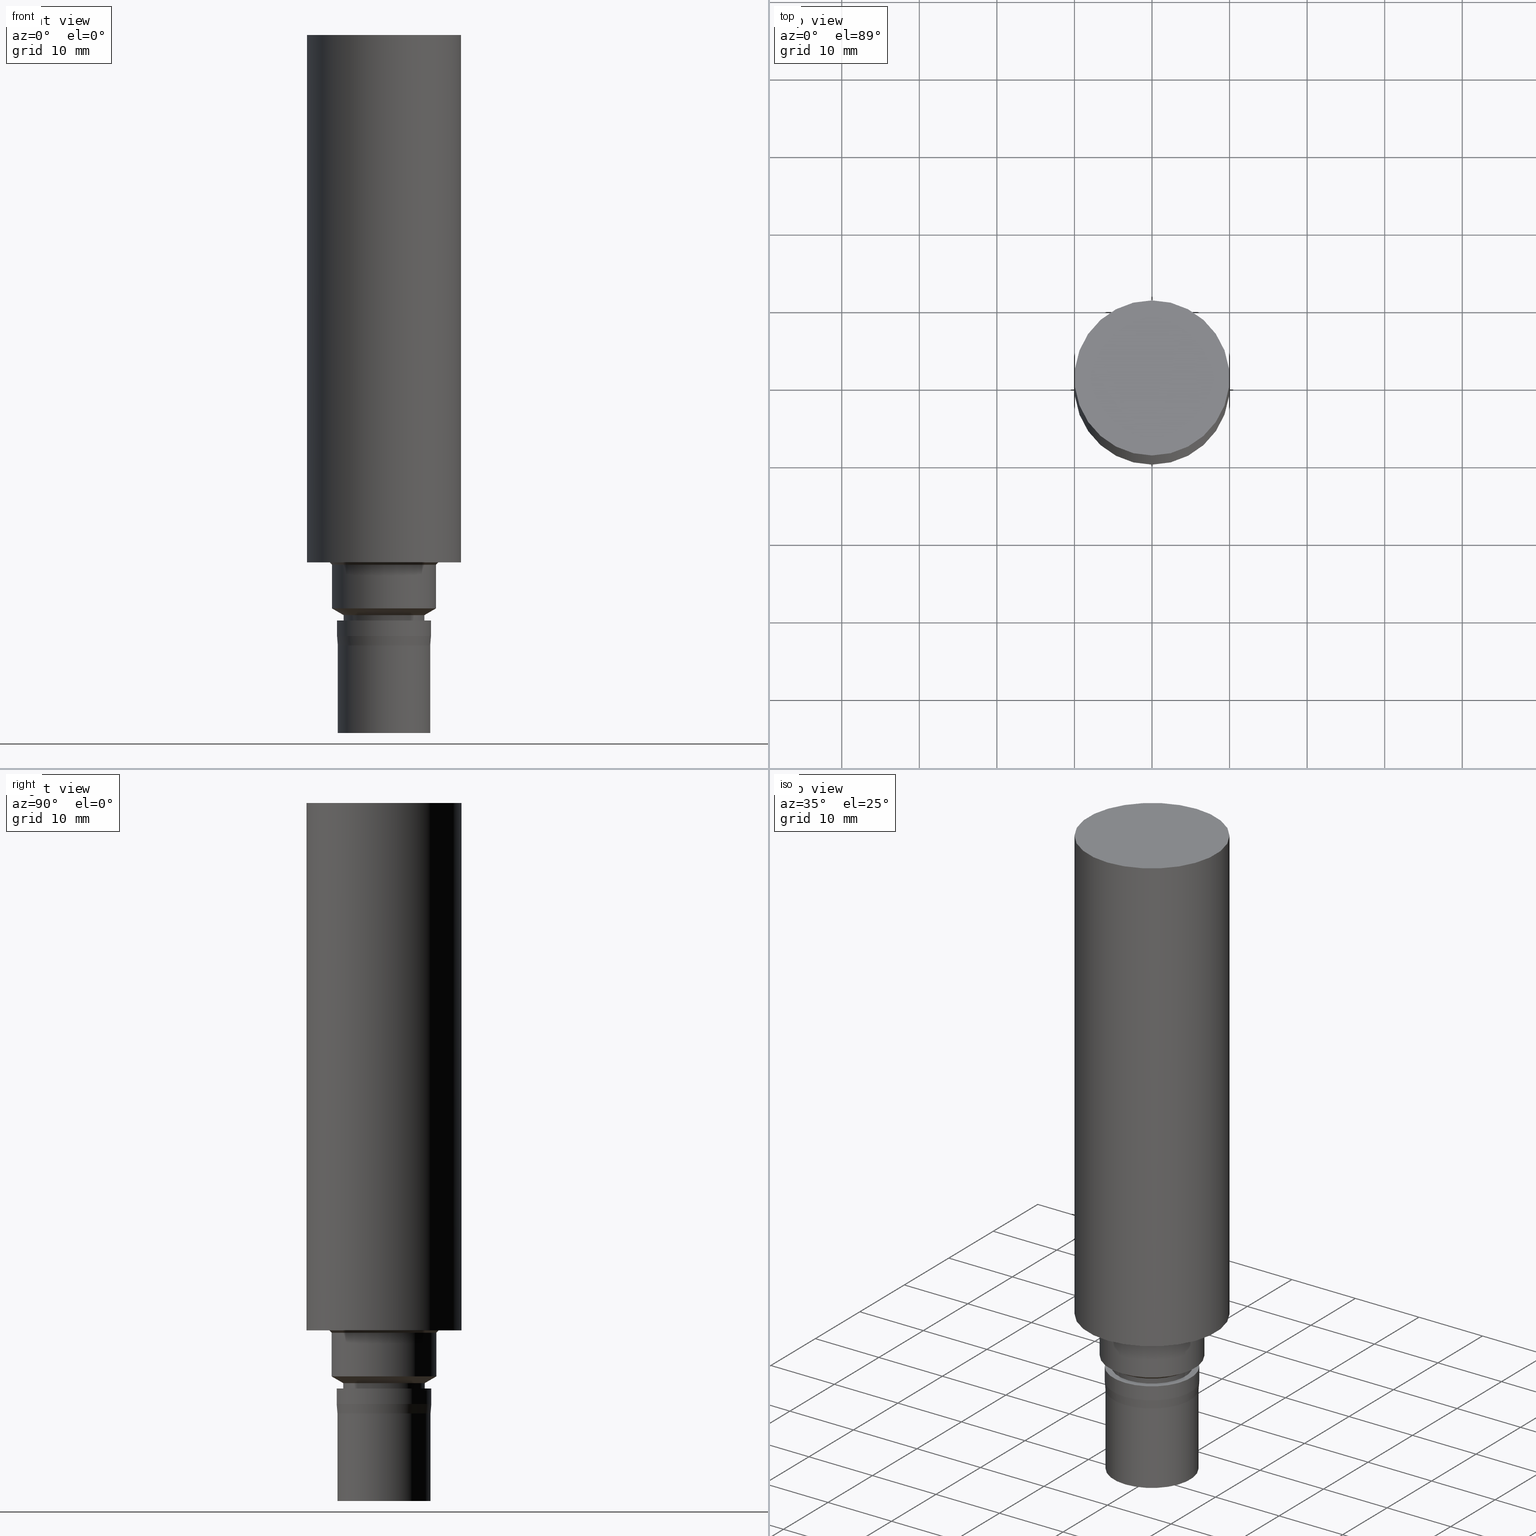
[diagram: canonical four-view strip — front | top / right | iso, engineering-drawing reading convention]
A machine part, canonical four-view strip (front | top / right | iso — engineering-drawing reading convention). The complete STEP part file that produces these views, byte-faithful:
ISO-10303-21;
HEADER;
FILE_DESCRIPTION((''),'1');
FILE_NAME('U:/Translate/00_BIG-HP\X2\FF71FF6FFF8CFF9F\X0\2013/\X2\30C030A630F330ED30FC30C930C730FC30BF\X0\/\X2\FF80FF9EFF73FF9DFF9BFF70FF84FF9EFF83FF9EFF70FF80\X0\201309/03_STP\X2\30C730FC30BF\X0\/ST/31_\X2\FF92FF76FF9EFF7CFF9DFF78FF9BFF80FF6FFF8BFF9FFF9DFF78FF9EFF8EFF99FF80FF9E\X0\/01_\X2\672C4F53\X0\/ST20-MGT3-90.stp','2015-08-12T05:34:02',(''),(''),'Spatial Interop R21 SP3','Kubotek KeyCreator 2011 V10.0.2 (22737)',' ');
FILE_SCHEMA(('automotive_design'));
ENDSEC;
DATA;
#1=MECHANICAL_DESIGN_GEOMETRIC_PRESENTATION_REPRESENTATION(' ',(#10,#11,#12,#13,#14,#15,#16,#17,#18,#19,#20,#21,#22,#23,#24,#25,#26,#27,#28,#29,#30,#31,#32,#33),#6);
#2=PRODUCT_DEFINITION_CONTEXT('',#34,'design');
#3=APPLICATION_PROTOCOL_DEFINITION('INTERNATIONAL STANDARD','automotive_design',1994,#34);
#4=PRODUCT_CATEGORY_RELATIONSHIP('NONE','NONE',#35,#36);
#5=SHAPE_DEFINITION_REPRESENTATION(#37,#38);
#6= (GEOMETRIC_REPRESENTATION_CONTEXT(3)GLOBAL_UNCERTAINTY_ASSIGNED_CONTEXT((#41))GLOBAL_UNIT_ASSIGNED_CONTEXT((#43,#44,#45))REPRESENTATION_CONTEXT('NONE','WORKSPACE'));
#10=STYLED_ITEM('',(#47,#48),#49);
#11=STYLED_ITEM('',(#50),#51);
#12=STYLED_ITEM('',(#52,#53),#54);
#13=STYLED_ITEM('',(#55,#56),#57);
#14=STYLED_ITEM('',(#58,#59),#60);
#15=STYLED_ITEM('',(#61,#62),#63);
#16=STYLED_ITEM('',(#64),#65);
#17=STYLED_ITEM('',(#66),#67);
#18=STYLED_ITEM('',(#68,#69),#70);
#19=STYLED_ITEM('',(#71,#72),#73);
#20=STYLED_ITEM('',(#74,#75),#76);
#21=STYLED_ITEM('',(#77),#78);
#22=STYLED_ITEM('',(#79,#80),#81);
#23=STYLED_ITEM('',(#82),#83);
#24=STYLED_ITEM('',(#84),#85);
#25=STYLED_ITEM('',(#86),#87);
#26=STYLED_ITEM('',(#88),#89);
#27=STYLED_ITEM('',(#90),#91);
#28=STYLED_ITEM('',(#92,#93),#94);
#29=STYLED_ITEM('',(#95,#96),#97);
#30=STYLED_ITEM('',(#98,#99),#100);
#31=STYLED_ITEM('',(#101),#102);
#32=STYLED_ITEM('',(#103),#104);
#33=STYLED_ITEM('',(#105,#106),#107);
#34=APPLICATION_CONTEXT(' ');
#35=PRODUCT_CATEGORY('part','NONE');
#36=PRODUCT_RELATED_PRODUCT_CATEGORY('detail',' ',(#108));
#37=PRODUCT_DEFINITION_SHAPE('NONE','NONE',#109);
#38=ADVANCED_BREP_SHAPE_REPRESENTATION('Unnamed[1]',(#73,#110),#6);
#41=UNCERTAINTY_MEASURE_WITH_UNIT(LENGTH_MEASURE(1.0E-006),#43,'','');
#43= (CONVERSION_BASED_UNIT('MILLIMETRE',#113)LENGTH_UNIT()NAMED_UNIT(#116));
#44= (NAMED_UNIT(#118)PLANE_ANGLE_UNIT()SI_UNIT($,.RADIAN.));
#45= (NAMED_UNIT(#118)SOLID_ANGLE_UNIT()SI_UNIT($,.STERADIAN.));
#47=PRESENTATION_STYLE_ASSIGNMENT((#124));
#48=PRESENTATION_STYLE_ASSIGNMENT((#125));
#49=ADVANCED_FACE('Unnamed[1]',(#126,#127),#128,.T.);
#50=PRESENTATION_STYLE_ASSIGNMENT((#129));
#51=EDGE_CURVE('Unnamed[1]',#130,#130,#131,.T.);
#52=PRESENTATION_STYLE_ASSIGNMENT((#132));
#53=PRESENTATION_STYLE_ASSIGNMENT((#133));
#54=ADVANCED_FACE('Unnamed[1]',(#134,#135),#136,.T.);
#55=PRESENTATION_STYLE_ASSIGNMENT((#137));
#56=PRESENTATION_STYLE_ASSIGNMENT((#138));
#57=ADVANCED_FACE('Unnamed[1]',(#139,#140),#141,.T.);
#58=PRESENTATION_STYLE_ASSIGNMENT((#142));
#59=PRESENTATION_STYLE_ASSIGNMENT((#143));
#60=ADVANCED_FACE('Unnamed[1]',(#144),#145,.T.);
#61=PRESENTATION_STYLE_ASSIGNMENT((#146));
#62=PRESENTATION_STYLE_ASSIGNMENT((#147));
#63=ADVANCED_FACE('Unnamed[1]',(#148,#149),#150,.T.);
#64=PRESENTATION_STYLE_ASSIGNMENT((#151));
#65=EDGE_CURVE('Unnamed[1]',#152,#152,#153,.T.);
#66=PRESENTATION_STYLE_ASSIGNMENT((#154));
#67=EDGE_CURVE('Unnamed[1]',#155,#155,#156,.T.);
#68=PRESENTATION_STYLE_ASSIGNMENT((#157));
#69=PRESENTATION_STYLE_ASSIGNMENT((#158));
#70=ADVANCED_FACE('Unnamed[1]',(#159,#160),#161,.T.);
#71=PRESENTATION_STYLE_ASSIGNMENT((#162));
#72=PRESENTATION_STYLE_ASSIGNMENT((#163));
#73=MANIFOLD_SOLID_BREP('Unnamed[1]',#164);
#74=PRESENTATION_STYLE_ASSIGNMENT((#165));
#75=PRESENTATION_STYLE_ASSIGNMENT((#166));
#76=ADVANCED_FACE('Unnamed[1]',(#167),#168,.T.);
#77=PRESENTATION_STYLE_ASSIGNMENT((#169));
#78=EDGE_CURVE('Unnamed[1]',#170,#170,#171,.T.);
#79=PRESENTATION_STYLE_ASSIGNMENT((#172));
#80=PRESENTATION_STYLE_ASSIGNMENT((#173));
#81=ADVANCED_FACE('Unnamed[1]',(#174,#175),#176,.T.);
#82=PRESENTATION_STYLE_ASSIGNMENT((#177));
#83=EDGE_CURVE('Unnamed[1]',#178,#178,#179,.T.);
#84=PRESENTATION_STYLE_ASSIGNMENT((#180));
#85=EDGE_CURVE('Unnamed[1]',#181,#181,#182,.T.);
#86=PRESENTATION_STYLE_ASSIGNMENT((#183));
#87=EDGE_CURVE('Unnamed[1]',#184,#184,#185,.T.);
#88=PRESENTATION_STYLE_ASSIGNMENT((#186));
#89=EDGE_CURVE('Unnamed[1]',#187,#187,#188,.T.);
#90=PRESENTATION_STYLE_ASSIGNMENT((#189));
#91=EDGE_CURVE('Unnamed[1]',#190,#190,#191,.T.);
#92=PRESENTATION_STYLE_ASSIGNMENT((#192));
#93=PRESENTATION_STYLE_ASSIGNMENT((#193));
#94=ADVANCED_FACE('Unnamed[1]',(#194,#195),#196,.T.);
#95=PRESENTATION_STYLE_ASSIGNMENT((#197));
#96=PRESENTATION_STYLE_ASSIGNMENT((#198));
#97=ADVANCED_FACE('Unnamed[1]',(#199,#200),#201,.T.);
#98=PRESENTATION_STYLE_ASSIGNMENT((#202));
#99=PRESENTATION_STYLE_ASSIGNMENT((#203));
#100=ADVANCED_FACE('Unnamed[1]',(#204,#205),#206,.T.);
#101=PRESENTATION_STYLE_ASSIGNMENT((#207));
#102=EDGE_CURVE('Unnamed[1]',#208,#208,#209,.T.);
#103=PRESENTATION_STYLE_ASSIGNMENT((#210));
#104=EDGE_CURVE('Unnamed[1]',#211,#211,#212,.T.);
#105=PRESENTATION_STYLE_ASSIGNMENT((#213));
#106=PRESENTATION_STYLE_ASSIGNMENT((#214));
#107=ADVANCED_FACE('Unnamed[1]',(#215,#216),#217,.T.);
#108=PRODUCT('Unnamed[1]','Unnamed[1]','PART-Unnamed[1]-DESC',(#218));
#109=PRODUCT_DEFINITION('NONE','NONE',#219,#2);
#110=AXIS2_PLACEMENT_3D('',#220,#221,#222);
#113=LENGTH_MEASURE_WITH_UNIT(LENGTH_MEASURE(1.0),#223);
#116=DIMENSIONAL_EXPONENTS(1.0,0.0,0.0,0.0,0.0,0.0,0.0);
#118=DIMENSIONAL_EXPONENTS(0.0,0.0,0.0,0.0,0.0,0.0,0.0);
#124=SURFACE_STYLE_USAGE(.BOTH.,#224);
#125=CURVE_STYLE('',#225,POSITIVE_LENGTH_MEASURE(1000.0),#226);
#126=FACE_BOUND('',#227,.T.);
#127=FACE_BOUND('',#228,.T.);
#128=CYLINDRICAL_SURFACE('',#229,6.10000000000002);
#129=CURVE_STYLE('',#230,POSITIVE_LENGTH_MEASURE(1000.0),#231);
#130=VERTEX_POINT('',#232);
#131=CIRCLE('',#233,5.24999999999989);
#132=SURFACE_STYLE_USAGE(.BOTH.,#234);
#133=CURVE_STYLE('',#235,POSITIVE_LENGTH_MEASURE(1000.0),#236);
#134=FACE_BOUND('',#237,.T.);
#135=FACE_OUTER_BOUND('',#238,.T.);
#136=PLANE('',#239);
#137=SURFACE_STYLE_USAGE(.BOTH.,#240);
#138=CURVE_STYLE('',#241,POSITIVE_LENGTH_MEASURE(1000.0),#242);
#139=FACE_BOUND('',#243,.T.);
#140=FACE_BOUND('',#244,.T.);
#141=CONICAL_SURFACE('',#245,6.04999999999995,0.0831412318881519);
#142=SURFACE_STYLE_USAGE(.BOTH.,#246);
#143=CURVE_STYLE('',#247,POSITIVE_LENGTH_MEASURE(1000.0),#248);
#144=FACE_OUTER_BOUND('',#249,.T.);
#145=PLANE('',#250);
#146=SURFACE_STYLE_USAGE(.BOTH.,#251);
#147=CURVE_STYLE('',#252,POSITIVE_LENGTH_MEASURE(1000.0),#253);
#148=FACE_BOUND('',#254,.T.);
#149=FACE_BOUND('',#255,.T.);
#150=CYLINDRICAL_SURFACE('',#256,5.99999999999989);
#151=CURVE_STYLE('',#257,POSITIVE_LENGTH_MEASURE(1000.0),#258);
#152=VERTEX_POINT('',#259);
#153=CIRCLE('',#260,6.74999999999997);
#154=CURVE_STYLE('',#261,POSITIVE_LENGTH_MEASURE(1000.0),#262);
#155=VERTEX_POINT('',#263);
#156=CIRCLE('',#264,10.0000000000007);
#157=SURFACE_STYLE_USAGE(.BOTH.,#265);
#158=CURVE_STYLE('',#266,POSITIVE_LENGTH_MEASURE(1000.0),#267);
#159=FACE_BOUND('',#268,.T.);
#160=FACE_BOUND('',#269,.T.);
#161=CYLINDRICAL_SURFACE('',#270,10.0000000000001);
#162=SURFACE_STYLE_USAGE(.BOTH.,#271);
#163=CURVE_STYLE('',#272,POSITIVE_LENGTH_MEASURE(1000.0),#273);
#164=CLOSED_SHELL('',(#54,#97,#100,#107,#81,#94,#49,#57,#63,#76,#60,#70));
#165=SURFACE_STYLE_USAGE(.BOTH.,#274);
#166=CURVE_STYLE('',#275,POSITIVE_LENGTH_MEASURE(1000.0),#276);
#167=FACE_OUTER_BOUND('',#277,.T.);
#168=PLANE('',#278);
#169=CURVE_STYLE('',#279,POSITIVE_LENGTH_MEASURE(1000.0),#280);
#170=VERTEX_POINT('',#281);
#171=CIRCLE('',#282,5.24999999999989);
#172=SURFACE_STYLE_USAGE(.BOTH.,#283);
#173=CURVE_STYLE('',#284,POSITIVE_LENGTH_MEASURE(1000.0),#285);
#174=FACE_BOUND('',#286,.T.);
#175=FACE_BOUND('',#287,.T.);
#176=CYLINDRICAL_SURFACE('',#288,5.24999999999989);
#177=CURVE_STYLE('',#289,POSITIVE_LENGTH_MEASURE(1000.0),#290);
#178=VERTEX_POINT('',#291);
#179=CIRCLE('',#292,7.05000000000022);
#180=CURVE_STYLE('',#293,POSITIVE_LENGTH_MEASURE(1000.0),#294);
#181=VERTEX_POINT('',#295);
#182=CIRCLE('',#296,5.99999999999989);
#183=CURVE_STYLE('',#297,POSITIVE_LENGTH_MEASURE(1000.0),#298);
#184=VERTEX_POINT('',#299);
#185=CIRCLE('',#300,9.99999999999962);
#186=CURVE_STYLE('',#301,POSITIVE_LENGTH_MEASURE(1000.0),#302);
#187=VERTEX_POINT('',#303);
#188=CIRCLE('',#304,6.74999999999997);
#189=CURVE_STYLE('',#305,POSITIVE_LENGTH_MEASURE(1000.0),#306);
#190=VERTEX_POINT('',#307);
#191=CIRCLE('',#308,6.10000000000002);
#192=SURFACE_STYLE_USAGE(.BOTH.,#309);
#193=CURVE_STYLE('',#310,POSITIVE_LENGTH_MEASURE(1000.0),#311);
#194=FACE_OUTER_BOUND('',#312,.T.);
#195=FACE_BOUND('',#313,.T.);
#196=PLANE('',#314);
#197=SURFACE_STYLE_USAGE(.BOTH.,#315);
#198=CURVE_STYLE('',#316,POSITIVE_LENGTH_MEASURE(1000.0),#317);
#199=FACE_BOUND('',#318,.T.);
#200=FACE_BOUND('',#319,.T.);
#201=CONICAL_SURFACE('',#320,6.9000000000001,0.785398163397516);
#202=SURFACE_STYLE_USAGE(.BOTH.,#321);
#203=CURVE_STYLE('',#322,POSITIVE_LENGTH_MEASURE(1000.0),#323);
#204=FACE_BOUND('',#324,.T.);
#205=FACE_BOUND('',#325,.T.);
#206=CYLINDRICAL_SURFACE('',#326,6.74999999999997);
#207=CURVE_STYLE('',#327,POSITIVE_LENGTH_MEASURE(1000.0),#328);
#208=VERTEX_POINT('',#329);
#209=CIRCLE('',#330,6.10000000000002);
#210=CURVE_STYLE('',#331,POSITIVE_LENGTH_MEASURE(1000.0),#332);
#211=VERTEX_POINT('',#333);
#212=CIRCLE('',#334,5.99999999999989);
#213=SURFACE_STYLE_USAGE(.BOTH.,#335);
#214=CURVE_STYLE('',#336,POSITIVE_LENGTH_MEASURE(1000.0),#337);
#215=FACE_BOUND('',#338,.T.);
#216=FACE_BOUND('',#339,.T.);
#217=CONICAL_SURFACE('',#340,5.99999999999993,1.04719755119653);
#218=PRODUCT_CONTEXT('',#34,'mechanical');
#219=PRODUCT_DEFINITION_FORMATION_WITH_SPECIFIED_SOURCE(' ','NONE',#108,.NOT_KNOWN.);
#220=CARTESIAN_POINT('',(0.0,0.0,0.0));
#221=DIRECTION('',(0.0,0.0,1.0));
#222=DIRECTION('',(1.0,0.0,0.0));
#223= (NAMED_UNIT(#116)LENGTH_UNIT()SI_UNIT(.MILLI.,.METRE.));
#224=SURFACE_SIDE_STYLE('',(#342));
#225=DRAUGHTING_PRE_DEFINED_CURVE_FONT('continuous');
#226=COLOUR_RGB('',0.0,1.0,0.0);
#227=EDGE_LOOP('',(#343));
#228=EDGE_LOOP('',(#344));
#229=AXIS2_PLACEMENT_3D('',#345,#346,#347);
#230=DRAUGHTING_PRE_DEFINED_CURVE_FONT('continuous');
#231=COLOUR_RGB('',0.0,1.0,0.0);
#232=CARTESIAN_POINT('',(-8.87868929381823E-016,5.24999999999988,14.4999999999999));
#233=AXIS2_PLACEMENT_3D('',#348,#349,#350);
#234=SURFACE_SIDE_STYLE('',(#351));
#235=DRAUGHTING_PRE_DEFINED_CURVE_FONT('continuous');
#236=COLOUR_RGB('',0.0,1.0,0.0);
#237=EDGE_LOOP('',(#352));
#238=EDGE_LOOP('',(#353));
#239=AXIS2_PLACEMENT_3D('',#354,#355,#356);
#240=SURFACE_SIDE_STYLE('',(#357));
#241=DRAUGHTING_PRE_DEFINED_CURVE_FONT('continuous');
#242=COLOUR_RGB('',0.0,1.0,0.0);
#243=EDGE_LOOP('',(#358));
#244=EDGE_LOOP('',(#359));
#245=AXIS2_PLACEMENT_3D('',#360,#361,#362);
#246=SURFACE_SIDE_STYLE('',(#363));
#247=DRAUGHTING_PRE_DEFINED_CURVE_FONT('continuous');
#248=COLOUR_RGB('',0.0,1.0,0.0);
#249=EDGE_LOOP('',(#364));
#250=AXIS2_PLACEMENT_3D('',#365,#366,#367);
#251=SURFACE_SIDE_STYLE('',(#368));
#252=DRAUGHTING_PRE_DEFINED_CURVE_FONT('continuous');
#253=COLOUR_RGB('',0.0,1.0,0.0);
#254=EDGE_LOOP('',(#369));
#255=EDGE_LOOP('',(#370));
#256=AXIS2_PLACEMENT_3D('',#371,#372,#373);
#257=DRAUGHTING_PRE_DEFINED_CURVE_FONT('continuous');
#258=COLOUR_RGB('',0.0,1.0,0.0);
#259=CARTESIAN_POINT('',(-9.83760329288216E-016,6.74999999999997,16.0660254037842));
#260=AXIS2_PLACEMENT_3D('',#374,#375,#376);
#261=DRAUGHTING_PRE_DEFINED_CURVE_FONT('continuous');
#262=COLOUR_RGB('',0.0,1.0,0.0);
#263=CARTESIAN_POINT('',(-5.51091059616327E-015,10.0000000000007,90.0000000000029));
#264=AXIS2_PLACEMENT_3D('',#377,#378,#379);
#265=SURFACE_SIDE_STYLE('',(#380));
#266=DRAUGHTING_PRE_DEFINED_CURVE_FONT('continuous');
#267=COLOUR_RGB('',0.0,1.0,0.0);
#268=EDGE_LOOP('',(#381));
#269=EDGE_LOOP('',(#382));
#270=AXIS2_PLACEMENT_3D('',#383,#384,#385);
#271=SURFACE_SIDE_STYLE('',(#386));
#272=DRAUGHTING_PRE_DEFINED_CURVE_FONT('continuous');
#273=COLOUR_RGB('',0.0,1.0,0.0);
#274=SURFACE_SIDE_STYLE('',(#387));
#275=DRAUGHTING_PRE_DEFINED_CURVE_FONT('continuous');
#276=COLOUR_RGB('',0.0,1.0,0.0);
#277=EDGE_LOOP('',(#388));
#278=AXIS2_PLACEMENT_3D('',#389,#390,#391);
#279=DRAUGHTING_PRE_DEFINED_CURVE_FONT('continuous');
#280=COLOUR_RGB('',0.0,1.0,0.0);
#281=CARTESIAN_POINT('',(-9.30731567351959E-016,5.24999999999988,15.1999999999995));
#282=AXIS2_PLACEMENT_3D('',#392,#393,#394);
#283=SURFACE_SIDE_STYLE('',(#395));
#284=DRAUGHTING_PRE_DEFINED_CURVE_FONT('continuous');
#285=COLOUR_RGB('',0.0,1.0,0.0);
#286=EDGE_LOOP('',(#396));
#287=EDGE_LOOP('',(#397));
#288=AXIS2_PLACEMENT_3D('',#398,#399,#400);
#289=DRAUGHTING_PRE_DEFINED_CURVE_FONT('continuous');
#290=COLOUR_RGB('',0.0,1.0,0.0);
#291=CARTESIAN_POINT('',(-1.34711147906198E-015,7.05000000000022,21.9999999999983));
#292=AXIS2_PLACEMENT_3D('',#401,#402,#403);
#293=DRAUGHTING_PRE_DEFINED_CURVE_FONT('continuous');
#294=COLOUR_RGB('',0.0,1.0,0.0);
#295=CARTESIAN_POINT('',(0.0,5.99999999999989,0.0));
#296=AXIS2_PLACEMENT_3D('',#404,#405,#406);
#297=DRAUGHTING_PRE_DEFINED_CURVE_FONT('continuous');
#298=COLOUR_RGB('',0.0,1.0,0.0);
#299=CARTESIAN_POINT('',(-1.34711147906211E-015,9.99999999999962,22.0000000000003));
#300=AXIS2_PLACEMENT_3D('',#407,#408,#409);
#301=DRAUGHTING_PRE_DEFINED_CURVE_FONT('continuous');
#302=COLOUR_RGB('',0.0,1.0,0.0);
#303=CARTESIAN_POINT('',(-1.32874177707476E-015,6.74999999999997,21.6999999999981));
#304=AXIS2_PLACEMENT_3D('',#410,#411,#412);
#305=DRAUGHTING_PRE_DEFINED_CURVE_FONT('continuous');
#306=COLOUR_RGB('',0.0,1.0,0.0);
#307=CARTESIAN_POINT('',(-8.87868929381823E-016,6.10000000000002,14.4999999999999));
#308=AXIS2_PLACEMENT_3D('',#413,#414,#415);
#309=SURFACE_SIDE_STYLE('',(#416));
#310=DRAUGHTING_PRE_DEFINED_CURVE_FONT('continuous');
#311=COLOUR_RGB('',0.0,1.0,0.0);
#312=EDGE_LOOP('',(#417));
#313=EDGE_LOOP('',(#418));
#314=AXIS2_PLACEMENT_3D('',#419,#420,#421);
#315=SURFACE_SIDE_STYLE('',(#422));
#316=DRAUGHTING_PRE_DEFINED_CURVE_FONT('continuous');
#317=COLOUR_RGB('',0.0,1.0,0.0);
#318=EDGE_LOOP('',(#423));
#319=EDGE_LOOP('',(#424));
#320=AXIS2_PLACEMENT_3D('',#425,#426,#427);
#321=SURFACE_SIDE_STYLE('',(#428));
#322=DRAUGHTING_PRE_DEFINED_CURVE_FONT('continuous');
#323=COLOUR_RGB('',0.0,1.0,0.0);
#324=EDGE_LOOP('',(#429));
#325=EDGE_LOOP('',(#430));
#326=AXIS2_PLACEMENT_3D('',#431,#432,#433);
#327=DRAUGHTING_PRE_DEFINED_CURVE_FONT('continuous');
#328=COLOUR_RGB('',0.0,1.0,0.0);
#329=CARTESIAN_POINT('',(-7.6540424946707E-016,6.10000000000002,12.4999999999996));
#330=AXIS2_PLACEMENT_3D('',#434,#435,#436);
#331=DRAUGHTING_PRE_DEFINED_CURVE_FONT('continuous');
#332=COLOUR_RGB('',0.0,1.0,0.0);
#333=CARTESIAN_POINT('',(-6.91925441517873E-016,5.99999999999989,11.2999999999938));
#334=AXIS2_PLACEMENT_3D('',#437,#438,#439);
#335=SURFACE_SIDE_STYLE('',(#440));
#336=DRAUGHTING_PRE_DEFINED_CURVE_FONT('continuous');
#337=COLOUR_RGB('',0.0,1.0,0.0);
#338=EDGE_LOOP('',(#441));
#339=EDGE_LOOP('',(#442));
#340=AXIS2_PLACEMENT_3D('',#443,#444,#445);
#342=SURFACE_STYLE_FILL_AREA(#446);
#343=ORIENTED_EDGE('',*,*,#102,.F.);
#344=ORIENTED_EDGE('',*,*,#91,.T.);
#345=CARTESIAN_POINT('',(-8.26636589424446E-016,-1.65327317884889E-015,13.4999999999997));
#346=DIRECTION('',(6.12323399573677E-017,1.22464679914735E-016,-1.0));
#347=DIRECTION('',(-1.23259516440783E-032,1.0,1.22464679914735E-016));
#348=CARTESIAN_POINT('',(-8.87868929381823E-016,-1.77573785876365E-015,14.4999999999999));
#349=DIRECTION('',(6.12323399573677E-017,1.22464679914735E-016,-1.0));
#350=DIRECTION('',(-1.23259516440783E-032,1.0,1.22464679914735E-016));
#351=SURFACE_STYLE_FILL_AREA(#447);
#352=ORIENTED_EDGE('',*,*,#83,.F.);
#353=ORIENTED_EDGE('',*,*,#87,.T.);
#354=CARTESIAN_POINT('',(-1.34711147906205E-015,8.52499999999992,21.9999999999993));
#355=DIRECTION('',(6.12323399573677E-017,6.88987625450864E-013,-1.0));
#356=DIRECTION('',(-4.21931516607575E-029,1.0,6.88987625450864E-013));
#357=SURFACE_STYLE_FILL_AREA(#448);
#358=ORIENTED_EDGE('',*,*,#104,.F.);
#359=ORIENTED_EDGE('',*,*,#102,.T.);
#360=CARTESIAN_POINT('',(-7.28664845492472E-016,-1.45732969098494E-015,11.8999999999967));
#361=DIRECTION('',(-6.12323399573677E-017,-1.22464679914735E-016,1.0));
#362=DIRECTION('',(-1.23259516440783E-032,1.0,1.22464679914735E-016));
#363=SURFACE_STYLE_FILL_AREA(#449);
#364=ORIENTED_EDGE('',*,*,#67,.F.);
#365=CARTESIAN_POINT('',(-5.51091059616327E-015,5.00000000000032,90.0000000000029));
#366=DIRECTION('',(-6.12323399573677E-017,-1.22464679914735E-016,1.0));
#367=DIRECTION('',(1.23259516440783E-032,-1.0,-1.22464679914735E-016));
#368=SURFACE_STYLE_FILL_AREA(#450);
#369=ORIENTED_EDGE('',*,*,#85,.F.);
#370=ORIENTED_EDGE('',*,*,#104,.T.);
#371=CARTESIAN_POINT('',(-3.45962720758937E-016,-6.91925441517874E-016,5.64999999999689));
#372=DIRECTION('',(6.12323399573677E-017,1.22464679914735E-016,-1.0));
#373=DIRECTION('',(-1.23259516440783E-032,1.0,1.22464679914735E-016));
#374=CARTESIAN_POINT('',(-9.83760329288216E-016,-1.96752065857643E-015,16.0660254037842));
#375=DIRECTION('',(6.12323399573677E-017,1.22464679914735E-016,-1.0));
#376=DIRECTION('',(-1.23259516440783E-032,1.0,1.22464679914735E-016));
#377=CARTESIAN_POINT('',(-5.51091059616327E-015,-1.10218211923265E-014,90.0000000000029));
#378=DIRECTION('',(6.12323399573677E-017,1.22464679914735E-016,-1.0));
#379=DIRECTION('',(-1.23259516440783E-032,1.0,1.22464679914735E-016));
#380=SURFACE_STYLE_FILL_AREA(#451);
#381=ORIENTED_EDGE('',*,*,#87,.F.);
#382=ORIENTED_EDGE('',*,*,#67,.T.);
#383=CARTESIAN_POINT('',(-3.42901103761269E-015,-6.85802207522537E-015,56.0000000000016));
#384=DIRECTION('',(6.12323399573677E-017,1.22464679914735E-016,-1.0));
#385=DIRECTION('',(-1.23259516440783E-032,1.0,1.22464679914735E-016));
#386=SURFACE_STYLE_FILL_AREA(#452);
#387=SURFACE_STYLE_FILL_AREA(#453);
#388=ORIENTED_EDGE('',*,*,#85,.T.);
#389=CARTESIAN_POINT('',(0.0,2.99999999999994,0.0));
#390=DIRECTION('',(6.12323399573677E-017,1.22464679914735E-016,-1.0));
#391=DIRECTION('',(-1.23259516440783E-032,1.0,1.22464679914735E-016));
#392=CARTESIAN_POINT('',(-9.30731567351959E-016,-1.86146313470392E-015,15.1999999999995));
#393=DIRECTION('',(6.12323399573677E-017,1.22464679914735E-016,-1.0));
#394=DIRECTION('',(-1.23259516440783E-032,1.0,1.22464679914735E-016));
#395=SURFACE_STYLE_FILL_AREA(#454);
#396=ORIENTED_EDGE('',*,*,#51,.F.);
#397=ORIENTED_EDGE('',*,*,#78,.T.);
#398=CARTESIAN_POINT('',(-9.09300248366891E-016,-1.81860049673378E-015,14.8499999999997));
#399=DIRECTION('',(6.12323399573677E-017,1.22464679914735E-016,-1.0));
#400=DIRECTION('',(-1.23259516440783E-032,1.0,1.22464679914735E-016));
#401=CARTESIAN_POINT('',(-1.34711147906198E-015,-2.69422295812397E-015,21.9999999999983));
#402=DIRECTION('',(6.12323399573677E-017,1.22464679914735E-016,-1.0));
#403=DIRECTION('',(-1.23259516440783E-032,1.0,1.22464679914735E-016));
#404=CARTESIAN_POINT('',(0.0,0.0,0.0));
#405=DIRECTION('',(6.12323399573677E-017,1.22464679914735E-016,-1.0));
#406=DIRECTION('',(-1.23259516440783E-032,1.0,1.22464679914735E-016));
#407=CARTESIAN_POINT('',(-1.34711147906211E-015,-2.69422295812422E-015,22.0000000000003));
#408=DIRECTION('',(6.12323399573677E-017,1.22464679914735E-016,-1.0));
#409=DIRECTION('',(-1.23259516440783E-032,1.0,1.22464679914735E-016));
#410=CARTESIAN_POINT('',(-1.32874177707476E-015,-2.65748355414952E-015,21.6999999999981));
#411=DIRECTION('',(6.12323399573677E-017,1.22464679914735E-016,-1.0));
#412=DIRECTION('',(-1.23259516440783E-032,1.0,1.22464679914735E-016));
#413=CARTESIAN_POINT('',(-8.87868929381823E-016,-1.77573785876365E-015,14.4999999999999));
#414=DIRECTION('',(6.12323399573677E-017,1.22464679914735E-016,-1.0));
#415=DIRECTION('',(-1.23259516440783E-032,1.0,1.22464679914735E-016));
#416=SURFACE_STYLE_FILL_AREA(#455);
#417=ORIENTED_EDGE('',*,*,#91,.F.);
#418=ORIENTED_EDGE('',*,*,#51,.T.);
#419=CARTESIAN_POINT('',(-8.87868929381823E-016,5.67499999999995,14.4999999999999));
#420=DIRECTION('',(-6.12323399573677E-017,-1.22464679914735E-016,1.0));
#421=DIRECTION('',(1.23259516440783E-032,-1.0,-1.22464679914735E-016));
#422=SURFACE_STYLE_FILL_AREA(#456);
#423=ORIENTED_EDGE('',*,*,#89,.F.);
#424=ORIENTED_EDGE('',*,*,#83,.T.);
#425=CARTESIAN_POINT('',(-1.33792662806837E-015,-2.67585325613675E-015,21.8499999999982));
#426=DIRECTION('',(-6.12323399573677E-017,-1.22464679914735E-016,1.0));
#427=DIRECTION('',(-1.23259516440783E-032,1.0,1.22464679914735E-016));
#428=SURFACE_STYLE_FILL_AREA(#457);
#429=ORIENTED_EDGE('',*,*,#65,.F.);
#430=ORIENTED_EDGE('',*,*,#89,.T.);
#431=CARTESIAN_POINT('',(-1.15625105318149E-015,-2.31250210636298E-015,18.8830127018911));
#432=DIRECTION('',(6.12323399573677E-017,1.22464679914735E-016,-1.0));
#433=DIRECTION('',(-1.23259516440783E-032,1.0,1.22464679914735E-016));
#434=CARTESIAN_POINT('',(-7.6540424946707E-016,-1.53080849893414E-015,12.4999999999996));
#435=DIRECTION('',(6.12323399573677E-017,1.22464679914735E-016,-1.0));
#436=DIRECTION('',(-1.23259516440783E-032,1.0,1.22464679914735E-016));
#437=CARTESIAN_POINT('',(-6.91925441517873E-016,-1.38385088303575E-015,11.2999999999938));
#438=DIRECTION('',(6.12323399573677E-017,1.22464679914735E-016,-1.0));
#439=DIRECTION('',(-1.23259516440783E-032,1.0,1.22464679914735E-016));
#440=SURFACE_STYLE_FILL_AREA(#458);
#441=ORIENTED_EDGE('',*,*,#78,.F.);
#442=ORIENTED_EDGE('',*,*,#65,.T.);
#443=CARTESIAN_POINT('',(-9.57245948320088E-016,-1.91449189664018E-015,15.6330127018918));
#444=DIRECTION('',(-6.12323399573677E-017,-1.22464679914735E-016,1.0));
#445=DIRECTION('',(-1.23259516440783E-032,1.0,1.22464679914735E-016));
#446=FILL_AREA_STYLE('',(#459));
#447=FILL_AREA_STYLE('',(#460));
#448=FILL_AREA_STYLE('',(#461));
#449=FILL_AREA_STYLE('',(#462));
#450=FILL_AREA_STYLE('',(#463));
#451=FILL_AREA_STYLE('',(#464));
#452=FILL_AREA_STYLE('',(#465));
#453=FILL_AREA_STYLE('',(#466));
#454=FILL_AREA_STYLE('',(#467));
#455=FILL_AREA_STYLE('',(#468));
#456=FILL_AREA_STYLE('',(#469));
#457=FILL_AREA_STYLE('',(#470));
#458=FILL_AREA_STYLE('',(#471));
#459=FILL_AREA_STYLE_COLOUR('',#472);
#460=FILL_AREA_STYLE_COLOUR('',#473);
#461=FILL_AREA_STYLE_COLOUR('',#474);
#462=FILL_AREA_STYLE_COLOUR('',#475);
#463=FILL_AREA_STYLE_COLOUR('',#476);
#464=FILL_AREA_STYLE_COLOUR('',#477);
#465=FILL_AREA_STYLE_COLOUR('',#478);
#466=FILL_AREA_STYLE_COLOUR('',#479);
#467=FILL_AREA_STYLE_COLOUR('',#480);
#468=FILL_AREA_STYLE_COLOUR('',#481);
#469=FILL_AREA_STYLE_COLOUR('',#482);
#470=FILL_AREA_STYLE_COLOUR('',#483);
#471=FILL_AREA_STYLE_COLOUR('',#484);
#472=COLOUR_RGB('',0.0,1.0,0.0);
#473=COLOUR_RGB('',0.0,1.0,0.0);
#474=COLOUR_RGB('',0.0,1.0,0.0);
#475=COLOUR_RGB('',0.0,1.0,0.0);
#476=COLOUR_RGB('',0.0,1.0,0.0);
#477=COLOUR_RGB('',0.0,1.0,0.0);
#478=COLOUR_RGB('',0.0,1.0,0.0);
#479=COLOUR_RGB('',0.0,1.0,0.0);
#480=COLOUR_RGB('',0.0,1.0,0.0);
#481=COLOUR_RGB('',0.0,1.0,0.0);
#482=COLOUR_RGB('',0.0,1.0,0.0);
#483=COLOUR_RGB('',0.0,1.0,0.0);
#484=COLOUR_RGB('',0.0,1.0,0.0);
ENDSEC;
END-ISO-10303-21;
